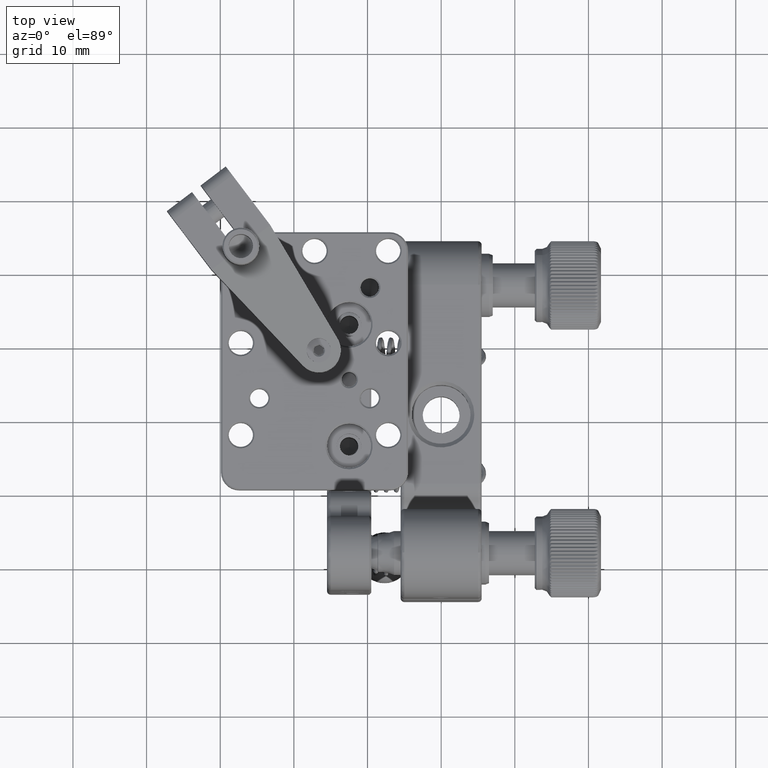
[diagram: clean part render]
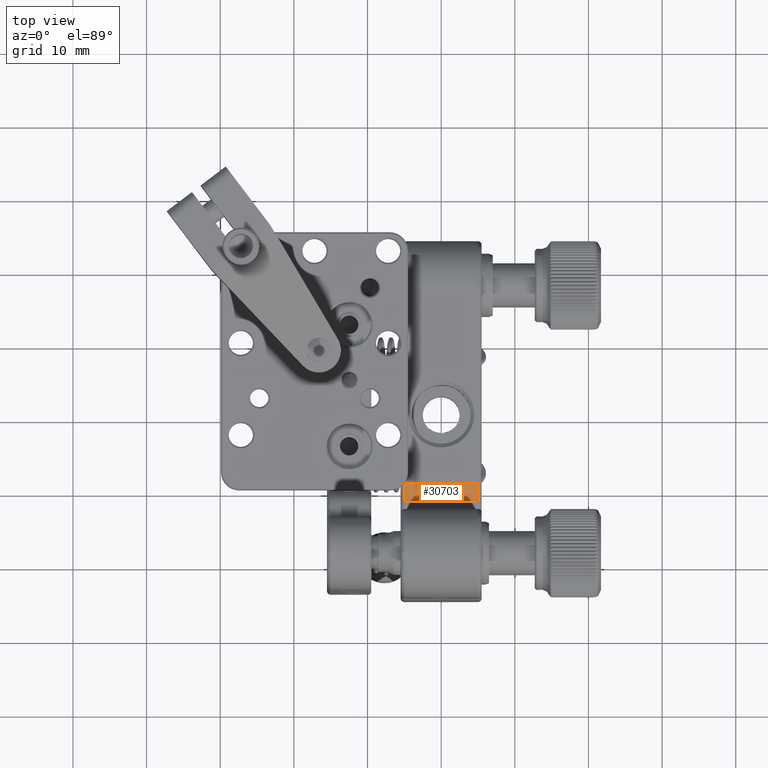
[diagram: same view with one face highlighted and labeled with its STEP entity id]
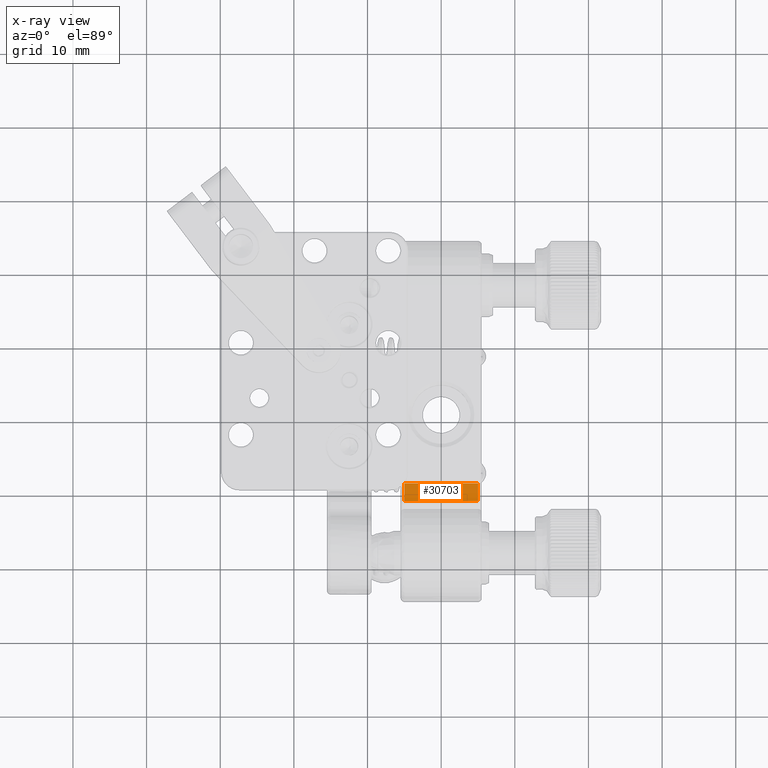
[diagram: x-ray of the same camera — body ghosted, the highlighted face saturated]
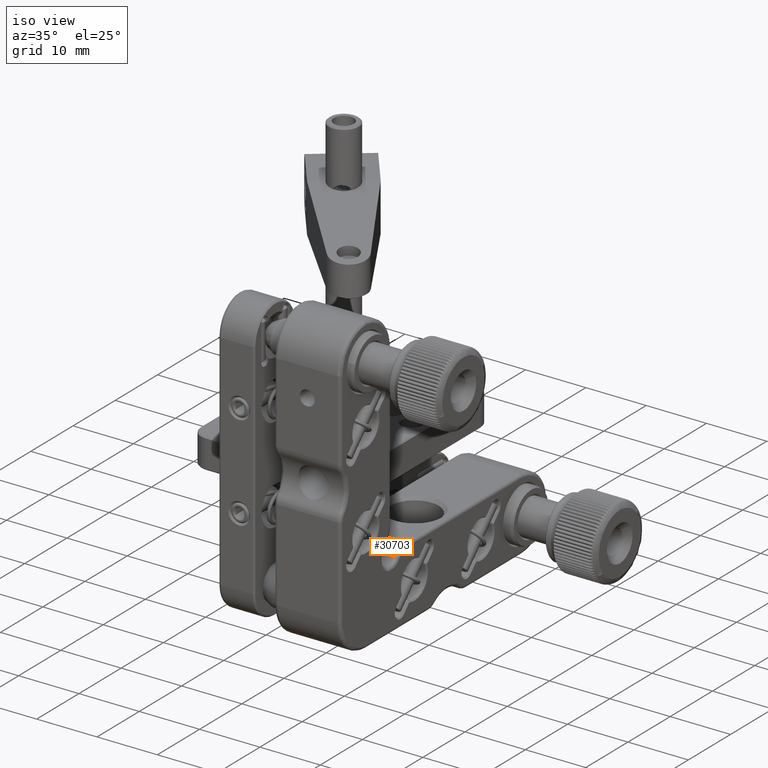
[diagram: same view with one face highlighted and labeled with its STEP entity id]
A machine part, top view. The second image highlights one B-rep face of the part: STEP entity #30703.
The next image is the same camera in x-ray: the body ghosted, the highlighted face saturated — about 0% of this face is hidden behind the body in this view.
A second angle (iso view) of the same face is appended — the face is thin or edge-on in the first view.
In plain terms, the highlighted cylindrical surface (edge-blend (fillet) strip) has radius 3 mm, axis along (1, 0, 0).
Its self-contained STEP definition (entity closure, byte-faithful):
#1666 = CARTESIAN_POINT ( 'NONE',  ( -5.000000000000000000, -8.500000000000003553, -15.49999999999999112 ) ) ;
#7186 = AXIS2_PLACEMENT_3D ( 'NONE', #45599, #14911, #46786 ) ;
#8122 = VERTEX_POINT ( 'NONE', #17648 ) ;
#11737 = EDGE_CURVE ( 'NONE', #35515, #16539, #23036, .T. ) ;
#12875 = CIRCLE ( 'NONE', #7186, 2.999999999848380838 ) ;
#13679 = DIRECTION ( 'NONE',  ( 1.000000000000000000, 0.000000000000000000, 0.000000000000000000 ) ) ;
#14911 = DIRECTION ( 'NONE',  ( 1.000000000000000000, -4.507438966628349249E-15, 9.014877934077148549E-15 ) ) ;
#15835 = VECTOR ( 'NONE', #13679, 1000.000000000000000 ) ;
#16539 = VERTEX_POINT ( 'NONE', #48744 ) ;
#17648 = CARTESIAN_POINT ( 'NONE',  ( 4.999999999941576512, -8.500000003212798916, -12.49999999999999822 ) ) ;
#17894 = EDGE_CURVE ( 'NONE', #16539, #8122, #54207, .T. ) ;
#19595 = ORIENTED_EDGE ( 'NONE', *, *, #17894, .F. ) ;
#23036 = CIRCLE ( 'NONE', #44919, 2.999999999999990674 ) ;
#23088 = DIRECTION ( 'NONE',  ( -1.000000000000000000, -0.000000000000000000, -0.000000000000000000 ) ) ;
#24628 = CYLINDRICAL_SURFACE ( 'NONE', #33942, 2.999999999999990674 ) ;
#28550 = ORIENTED_EDGE ( 'NONE', *, *, #38146, .F. ) ;
#29135 = VECTOR ( 'NONE', #53222, 1000.000000000000000 ) ;
#29368 = DIRECTION ( 'NONE',  ( 1.000000000000000000, 0.000000000000000000, 0.000000000000000000 ) ) ;
#30635 = ORIENTED_EDGE ( 'NONE', *, *, #58738, .F. ) ;
#30703 = ADVANCED_FACE ( 'NONE', ( #51726 ), #24628, .T. ) ;
#31113 = ORIENTED_EDGE ( 'NONE', *, *, #11737, .F. ) ;
#32962 = DIRECTION ( 'NONE',  ( 0.000000000000000000, 0.000000000000000000, -1.000000000000000000 ) ) ;
#33942 = AXIS2_PLACEMENT_3D ( 'NONE', #1666, #29368, #32962 ) ;
#34390 = VERTEX_POINT ( 'NONE', #45685 ) ;
#35358 = EDGE_LOOP ( 'NONE', ( #30635, #28550, #19595, #31113 ) ) ;
#35515 = VERTEX_POINT ( 'NONE', #50467 ) ;
#36295 = CARTESIAN_POINT ( 'NONE',  ( 0.000000000000000000, -8.500000001230622715, -12.50000000000000000 ) ) ;
#37056 = CARTESIAN_POINT ( 'NONE',  ( -5.000000000000000000, -8.500000000000003553, -15.49999999999999112 ) ) ;
#38146 = EDGE_CURVE ( 'NONE', #8122, #34390, #12875, .T. ) ;
#40404 = LINE ( 'NONE', #57699, #29135 ) ;
#44919 = AXIS2_PLACEMENT_3D ( 'NONE', #37056, #23088, #54965 ) ;
#45599 = CARTESIAN_POINT ( 'NONE',  ( 5.000000000088282270, -8.499999999999989342, -15.49999999955356600 ) ) ;
#45685 = CARTESIAN_POINT ( 'NONE',  ( 5.000000000231289654, -10.89999999991351132, -13.69999999971553706 ) ) ;
#46786 = DIRECTION ( 'NONE',  ( -9.251858539010556902E-15, -3.469446952128959035E-15, 1.000000000000000000 ) ) ;
#48744 = CARTESIAN_POINT ( 'NONE',  ( -5.000000000000000000, -8.500000000615314022, -12.50000000000000000 ) ) ;
#50467 = CARTESIAN_POINT ( 'NONE',  ( -5.000000000000000000, -10.90000000023186821, -13.70000000024879938 ) ) ;
#51726 = FACE_OUTER_BOUND ( 'NONE', #35358, .T. ) ;
#53222 = DIRECTION ( 'NONE',  ( -1.000000000000000000, -0.000000000000000000, -0.000000000000000000 ) ) ;
#54207 = LINE ( 'NONE', #36295, #15835 ) ;
#54965 = DIRECTION ( 'NONE',  ( 0.000000000000000000, -4.102060126761262363E-10, 1.000000000000000000 ) ) ;
#57699 = CARTESIAN_POINT ( 'NONE',  ( 0.000000000000000000, -10.90000000000193481, -13.70000000000258034 ) ) ;
#58738 = EDGE_CURVE ( 'NONE', #34390, #35515, #40404, .T. ) ;